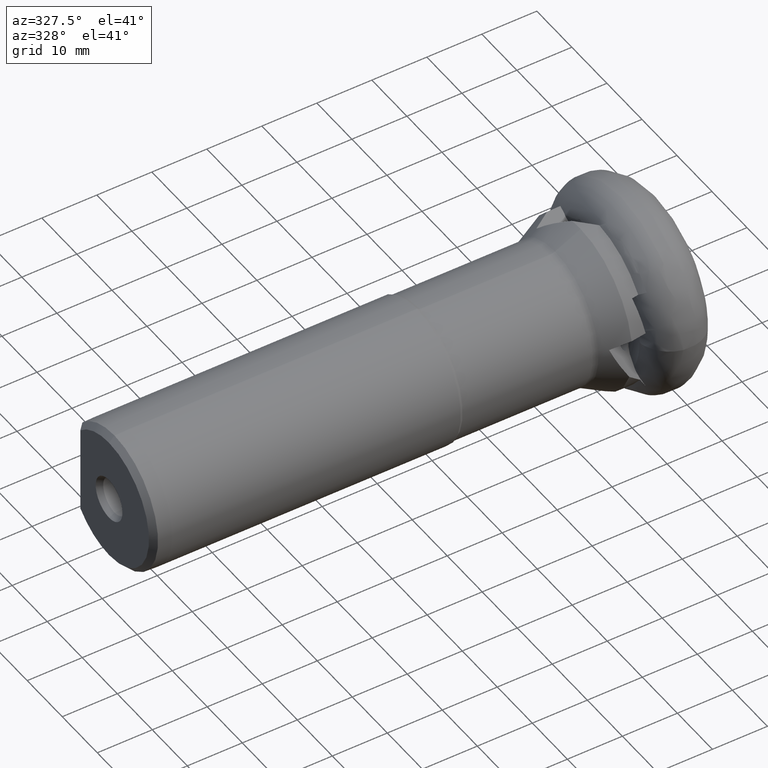
[diagram: clean part render]
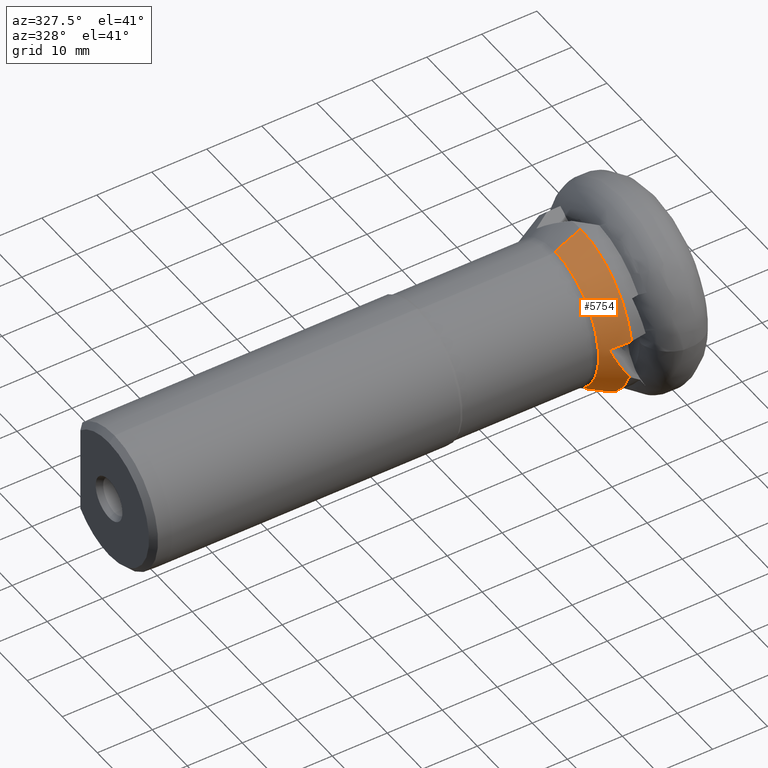
[diagram: same view with one face highlighted and labeled with its STEP entity id]
A machine part, auxiliary view. The second image highlights one B-rep face of the part: STEP entity #5754.
In plain terms, the highlighted conical surface has half-angle 27.07 deg.
Its self-contained STEP definition (entity closure, byte-faithful):
#91 = EDGE_CURVE ( 'NONE', #5206, #908, #1563, .T. ) ;
#120 = AXIS2_PLACEMENT_3D ( 'NONE', #4492, #4090, #2638 ) ;
#155 = CIRCLE ( 'NONE', #120, 12.41909999999999800 ) ;
#426 = DIRECTION ( 'NONE',  ( 0.0000000000000000000, 0.0000000000000000000, -1.000000000000000000 ) ) ;
#442 =( BOUNDED_CURVE ( )  B_SPLINE_CURVE ( 3, ( #772, #1684, #5346, #5837 ),
 .UNSPECIFIED., .F., .F. ) 
 B_SPLINE_CURVE_WITH_KNOTS ( ( 4, 4 ),
 ( 2.504081257777786500, 2.797725812973128600 ),
 .UNSPECIFIED. ) 
 CURVE ( )  GEOMETRIC_REPRESENTATION_ITEM ( )  RATIONAL_B_SPLINE_CURVE ( ( 1.000000000000000000, 0.9928273051846039400, 0.9928273051846039400, 1.000000000000000000 ) ) 
 REPRESENTATION_ITEM ( '' )  );
#672 = AXIS2_PLACEMENT_3D ( 'NONE', #4367, #2505, #3924 ) ;
#772 = CARTESIAN_POINT ( 'NONE',  ( -13.00000000000000000, -13.90307174457741000, -5.073913289083019000 ) ) ;
#908 = VERTEX_POINT ( 'NONE', #2690 ) ;
#1139 = ORIENTED_EDGE ( 'NONE', *, *, #4066, .T. ) ;
#1142 = DIRECTION ( 'NONE',  ( 0.8904500000000020700, 5.573135989083046100E-017, 0.4550810889281121700 ) ) ;
#1174 = ORIENTED_EDGE ( 'NONE', *, *, #3644, .F. ) ;
#1231 = VERTEX_POINT ( 'NONE', #3902 ) ;
#1388 = EDGE_CURVE ( 'NONE', #1455, #3061, #155, .T. ) ;
#1455 = VERTEX_POINT ( 'NONE', #5402 ) ;
#1563 = CIRCLE ( 'NONE', #1953, 14.80000000000000100 ) ;
#1684 = CARTESIAN_POINT ( 'NONE',  ( -14.34760054345022200, -13.97056476527371100, -2.880071481490584300 ) ) ;
#1774 = DIRECTION ( 'NONE',  ( 1.000000000000000000, -0.0000000000000000000, -0.0000000000000000000 ) ) ;
#1778 = EDGE_CURVE ( 'NONE', #3061, #1231, #3830, .T. ) ;
#1823 = VERTEX_POINT ( 'NONE', #4078 ) ;
#1953 = AXIS2_PLACEMENT_3D ( 'NONE', #3310, #5606, #2897 ) ;
#1982 = AXIS2_PLACEMENT_3D ( 'NONE', #3049, #1774, #426 ) ;
#2172 = CIRCLE ( 'NONE', #672, 14.80000000000000100 ) ;
#2206 = EDGE_CURVE ( 'NONE', #5182, #1231, #2172, .T. ) ;
#2505 = DIRECTION ( 'NONE',  ( 1.000000000000000000, -0.0000000000000000000, -0.0000000000000000000 ) ) ;
#2549 = B_SPLINE_CURVE_WITH_KNOTS ( 'NONE', 3,
 ( #4434, #3058, #3525, #4816 ),
 .UNSPECIFIED., .F., .F.,
 ( 4, 4 ),
 ( 2.341977502619058500E-007, 0.003745598037497738600 ),
 .UNSPECIFIED. ) ;
#2600 = VECTOR ( 'NONE', #4388, 1000.000000000000000 ) ;
#2638 = DIRECTION ( 'NONE',  ( 0.0000000000000000000, 0.0000000000000000000, -1.000000000000000000 ) ) ;
#2690 = CARTESIAN_POINT ( 'NONE',  ( -13.00000000000000200, -14.56158117124604500, 2.645818170852393300 ) ) ;
#2786 = ORIENTED_EDGE ( 'NONE', *, *, #91, .F. ) ;
#2885 = ORIENTED_EDGE ( 'NONE', *, *, #1388, .T. ) ;
#2897 = DIRECTION ( 'NONE',  ( 0.0000000000000000000, 0.0000000000000000000, -1.000000000000000000 ) ) ;
#2909 = CARTESIAN_POINT ( 'NONE',  ( -13.00000000000000000, -13.90307174457741000, -5.073913289083019000 ) ) ;
#2938 = EDGE_CURVE ( 'NONE', #1455, #5206, #4132, .T. ) ;
#3030 = ORIENTED_EDGE ( 'NONE', *, *, #2206, .F. ) ;
#3049 = CARTESIAN_POINT ( 'NONE',  ( -13.00000000000000000, 0.0000000000000000000, 0.0000000000000000000 ) ) ;
#3058 = CARTESIAN_POINT ( 'NONE',  ( -14.06615385650485600, -14.08881415347959500, 2.199847810040980600 ) ) ;
#3061 = VERTEX_POINT ( 'NONE', #5283 ) ;
#3103 = FACE_OUTER_BOUND ( 'NONE', #4458, .T. ) ;
#3310 = CARTESIAN_POINT ( 'NONE',  ( -13.00000000000000000, 0.0000000000000000000, 0.0000000000000000000 ) ) ;
#3480 = CARTESIAN_POINT ( 'NONE',  ( -13.00000000000000000, 0.0000000000000000000, -14.80000000000000100 ) ) ;
#3525 = CARTESIAN_POINT ( 'NONE',  ( -15.12642848623644400, -13.60720945516224000, 1.749729108058937200 ) ) ;
#3644 = EDGE_CURVE ( 'NONE', #908, #1823, #2549, .T. ) ;
#3792 = CARTESIAN_POINT ( 'NONE',  ( -13.00000000000000000, 1.812477262738082500E-015, 14.80000000000000100 ) ) ;
#3830 = LINE ( 'NONE', #3480, #2600 ) ;
#3902 = CARTESIAN_POINT ( 'NONE',  ( -13.00000000000000000, 0.0000000000000000000, -14.80000000000000100 ) ) ;
#3924 = DIRECTION ( 'NONE',  ( 0.0000000000000000000, 0.0000000000000000000, -1.000000000000000000 ) ) ;
#4066 = EDGE_CURVE ( 'NONE', #5182, #1823, #442, .T. ) ;
#4078 = CARTESIAN_POINT ( 'NONE',  ( -16.17783607441465300, -13.11227577946359300, 1.293353883755820100 ) ) ;
#4090 = DIRECTION ( 'NONE',  ( 1.000000000000000000, -0.0000000000000000000, -0.0000000000000000000 ) ) ;
#4132 = LINE ( 'NONE', #3792, #4630 ) ;
#4367 = CARTESIAN_POINT ( 'NONE',  ( -13.00000000000000000, 0.0000000000000000000, 0.0000000000000000000 ) ) ;
#4388 = DIRECTION ( 'NONE',  ( 0.8904500000000020700, 0.0000000000000000000, -0.4550810889281121700 ) ) ;
#4397 = ORIENTED_EDGE ( 'NONE', *, *, #2938, .F. ) ;
#4434 = CARTESIAN_POINT ( 'NONE',  ( -13.00000000000000200, -14.56158117124604500, 2.645818170852393300 ) ) ;
#4458 = EDGE_LOOP ( 'NONE', ( #4397, #2885, #5616, #3030, #1139, #1174, #2786 ) ) ;
#4492 = CARTESIAN_POINT ( 'NONE',  ( -17.65866953512302100, 0.0000000000000000000, 0.0000000000000000000 ) ) ;
#4630 = VECTOR ( 'NONE', #1142, 1000.000000000000000 ) ;
#4816 = CARTESIAN_POINT ( 'NONE',  ( -16.17783607441465300, -13.11227577946359300, 1.293353883755820100 ) ) ;
#5182 = VERTEX_POINT ( 'NONE', #2909 ) ;
#5206 = VERTEX_POINT ( 'NONE', #5622 ) ;
#5283 = CARTESIAN_POINT ( 'NONE',  ( -17.65866953512302100, 0.0000000000000000000, -12.41909999999999800 ) ) ;
#5346 = CARTESIAN_POINT ( 'NONE',  ( -15.41453200871102800, -13.70506173804892200, -0.7423156201611632600 ) ) ;
#5402 = CARTESIAN_POINT ( 'NONE',  ( -17.65866953512302100, 1.666689184533586200E-015, 12.41909999999999800 ) ) ;
#5606 = DIRECTION ( 'NONE',  ( 1.000000000000000000, -0.0000000000000000000, -0.0000000000000000000 ) ) ;
#5616 = ORIENTED_EDGE ( 'NONE', *, *, #1778, .T. ) ;
#5622 = CARTESIAN_POINT ( 'NONE',  ( -13.00000000000000000, 1.812477262738082500E-015, 14.80000000000000100 ) ) ;
#5626 = CONICAL_SURFACE ( 'NONE', #1982, 14.80000000000000100, 0.4724632771209952800 ) ;
#5754 = ADVANCED_FACE ( 'NONE', ( #3103 ), #5626, .T. ) ;
#5837 = CARTESIAN_POINT ( 'NONE',  ( -16.17783607441465300, -13.11227577946359300, 1.293353883755820100 ) ) ;